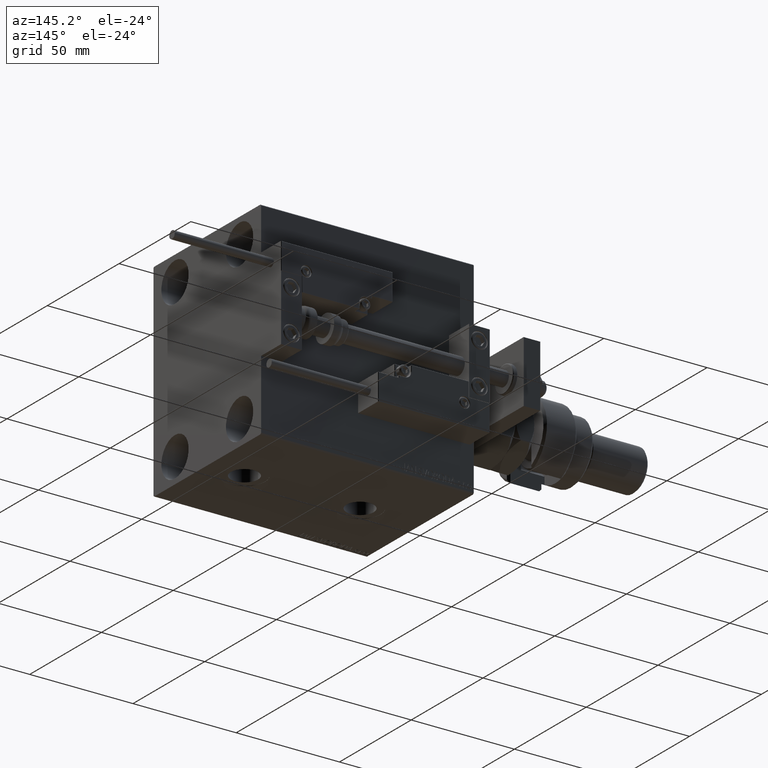
[diagram: clean part render]
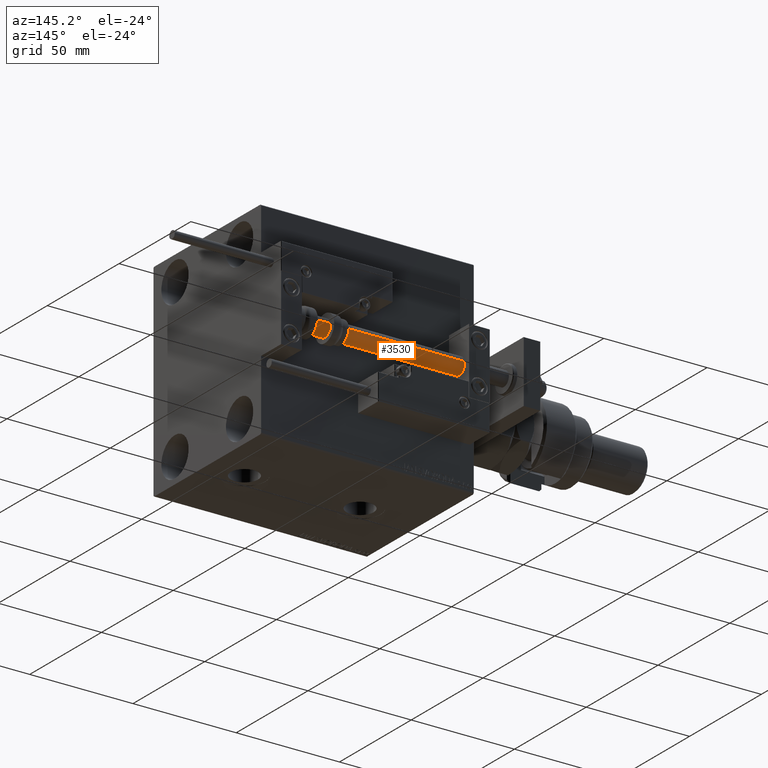
[diagram: same view with one face highlighted and labeled with its STEP entity id]
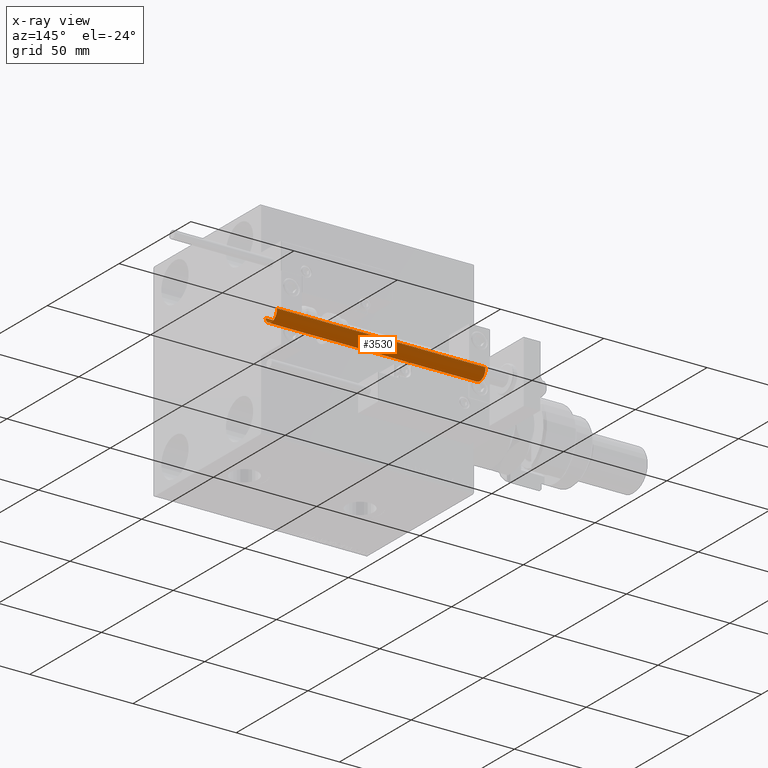
[diagram: x-ray of the same camera — body ghosted, the highlighted face saturated]
A machine part, auxiliary view. The second image highlights one B-rep face of the part: STEP entity #3530.
The next image is the same camera in x-ray: the body ghosted, the highlighted face saturated — about 0% of this face is hidden behind the body in this view.
In plain terms, the highlighted cylindrical surface (edge-blend (fillet) strip) has radius 4 mm, axis along (-1, 0, 0).
Its self-contained STEP definition (entity closure, byte-faithful):
#1189 = CARTESIAN_POINT ( 'NONE',  ( 0.000000000000000000, 0.000000000000000000, 2.000000000000029310 ) ) ;
#1936 = AXIS2_PLACEMENT_3D ( 'NONE', #49663, #6645, #45515 ) ;
#3530 = ADVANCED_FACE ( 'NONE', ( #40126 ), #14191, .T. ) ;
#3940 = EDGE_CURVE ( 'NONE', #29014, #9371, #22118, .T. ) ;
#4134 = EDGE_CURVE ( 'NONE', #22886, #29014, #15155, .T. ) ;
#5905 = DIRECTION ( 'NONE',  ( -1.000000000000000000, 0.000000000000000000, 0.000000000000000000 ) ) ;
#6645 = DIRECTION ( 'NONE',  ( 0.000000000000000000, 0.000000000000000000, 1.000000000000000000 ) ) ;
#9371 = VERTEX_POINT ( 'NONE', #44582 ) ;
#9509 = VECTOR ( 'NONE', #38456, 1000.000000000000000 ) ;
#11132 = ORIENTED_EDGE ( 'NONE', *, *, #4134, .F. ) ;
#11347 = ORIENTED_EDGE ( 'NONE', *, *, #38407, .T. ) ;
#12905 = EDGE_CURVE ( 'NONE', #22886, #25781, #43693, .T. ) ;
#13905 = CARTESIAN_POINT ( 'NONE',  ( -4.000000000000000000, 0.000000000000000000, 2.000000000000029310 ) ) ;
#14191 = CYLINDRICAL_SURFACE ( 'NONE', #47696, 4.000000000000000000 ) ;
#15000 = DIRECTION ( 'NONE',  ( -0.000000000000000000, -0.000000000000000000, -1.000000000000000000 ) ) ;
#15155 = CIRCLE ( 'NONE', #1936, 4.000000000000000000 ) ;
#22118 = LINE ( 'NONE', #34808, #34536 ) ;
#22886 = VERTEX_POINT ( 'NONE', #45440 ) ;
#24578 = CARTESIAN_POINT ( 'NONE',  ( 4.000000000000000000, 4.898587196589412829E-16, 103.0000000000000000 ) ) ;
#25254 = CIRCLE ( 'NONE', #46414, 4.000000000000000000 ) ;
#25781 = VERTEX_POINT ( 'NONE', #13905 ) ;
#29014 = VERTEX_POINT ( 'NONE', #24578 ) ;
#30940 = DIRECTION ( 'NONE',  ( -0.000000000000000000, -0.000000000000000000, -1.000000000000000000 ) ) ;
#34536 = VECTOR ( 'NONE', #30940, 1000.000000000000000 ) ;
#34808 = CARTESIAN_POINT ( 'NONE',  ( 4.000000000000000000, 4.898587196589412829E-16, 103.0000000000000000 ) ) ;
#35129 = CARTESIAN_POINT ( 'NONE',  ( -4.000000000000000000, 0.000000000000000000, 103.0000000000000000 ) ) ;
#35983 = ORIENTED_EDGE ( 'NONE', *, *, #3940, .F. ) ;
#38407 = EDGE_CURVE ( 'NONE', #25781, #9371, #25254, .T. ) ;
#38409 = DIRECTION ( 'NONE',  ( -0.000000000000000000, -0.000000000000000000, 1.000000000000000000 ) ) ;
#38456 = DIRECTION ( 'NONE',  ( -0.000000000000000000, -0.000000000000000000, -1.000000000000000000 ) ) ;
#40126 = FACE_OUTER_BOUND ( 'NONE', #51550, .T. ) ;
#43693 = LINE ( 'NONE', #35129, #9509 ) ;
#44239 = CARTESIAN_POINT ( 'NONE',  ( 0.000000000000000000, 0.000000000000000000, 103.0000000000000000 ) ) ;
#44582 = CARTESIAN_POINT ( 'NONE',  ( 4.000000000000000000, 4.898587196589412829E-16, 2.000000000000029310 ) ) ;
#45440 = CARTESIAN_POINT ( 'NONE',  ( -4.000000000000000000, 0.000000000000000000, 103.0000000000000000 ) ) ;
#45515 = DIRECTION ( 'NONE',  ( 1.000000000000000000, 0.000000000000000000, 0.000000000000000000 ) ) ;
#46414 = AXIS2_PLACEMENT_3D ( 'NONE', #1189, #38409, #50809 ) ;
#47696 = AXIS2_PLACEMENT_3D ( 'NONE', #44239, #15000, #5905 ) ;
#49663 = CARTESIAN_POINT ( 'NONE',  ( 0.000000000000000000, 0.000000000000000000, 103.0000000000000000 ) ) ;
#50809 = DIRECTION ( 'NONE',  ( 1.000000000000000000, 0.000000000000000000, 0.000000000000000000 ) ) ;
#51550 = EDGE_LOOP ( 'NONE', ( #35983, #11132, #52198, #11347 ) ) ;
#52198 = ORIENTED_EDGE ( 'NONE', *, *, #12905, .T. ) ;